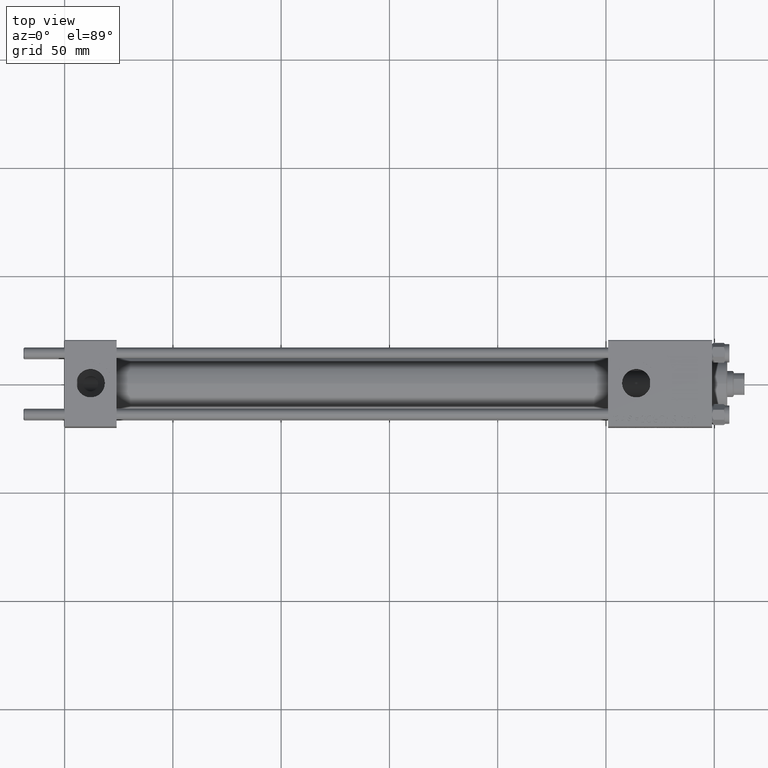
[diagram: clean part render]
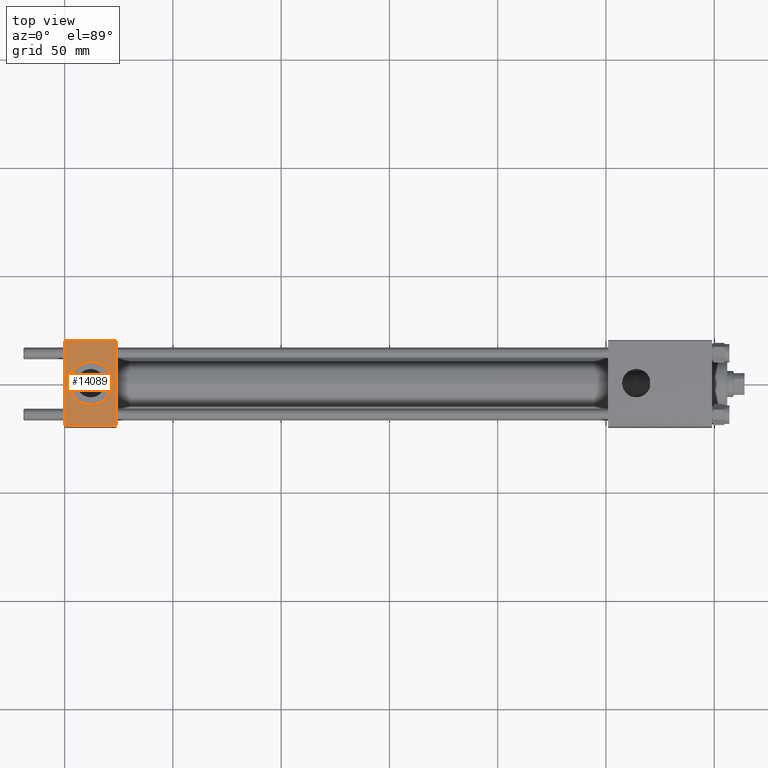
[diagram: same view with one face highlighted and labeled with its STEP entity id]
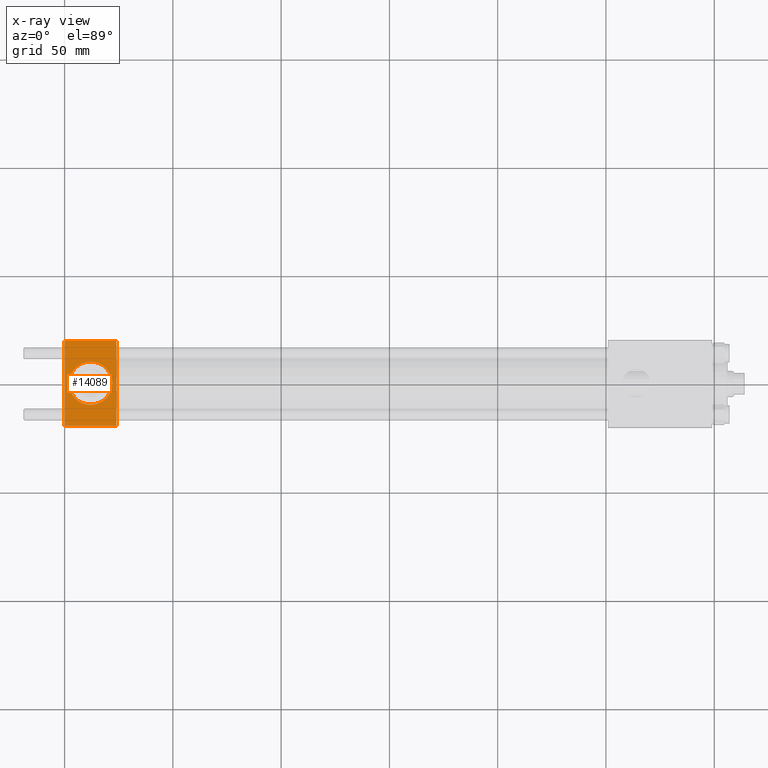
[diagram: x-ray of the same camera — body ghosted, the highlighted face saturated]
A machine part, top view. The second image highlights one B-rep face of the part: STEP entity #14089.
The next image is the same camera in x-ray: the body ghosted, the highlighted face saturated — about 0% of this face is hidden behind the body in this view.
In plain terms, the highlighted planar face has unit normal (0, 0, -1).
Its self-contained STEP definition (entity closure, byte-faithful):
#2878 = ORIENTED_EDGE ( 'NONE', *, *, #43893, .F. ) ;
#3404 = ORIENTED_EDGE ( 'NONE', *, *, #36253, .F. ) ;
#4213 = ORIENTED_EDGE ( 'NONE', *, *, #48633, .T. ) ;
#4687 = DIRECTION ( 'NONE',  ( 0.000000000000000000, -1.000000000000000000, -2.602085213965210149E-16 ) ) ;
#4936 = CARTESIAN_POINT ( 'NONE',  ( 24.00000000000000000, 20.00000000000000000, 20.00000000000000000 ) ) ;
#5220 = CARTESIAN_POINT ( 'NONE',  ( 2.000000000000003553, 1.224646799147354440E-15, 19.99999999999999645 ) ) ;
#9597 = DIRECTION ( 'NONE',  ( -1.000000000000000000, 0.000000000000000000, 0.000000000000000000 ) ) ;
#10247 = EDGE_CURVE ( 'NONE', #16163, #31042, #13013, .T. ) ;
#10495 = EDGE_LOOP ( 'NONE', ( #3404, #2878 ) ) ;
#12122 = CARTESIAN_POINT ( 'NONE',  ( 24.00000000000000000, 19.50000000000000000, 20.00000000000000000 ) ) ;
#12256 = DIRECTION ( 'NONE',  ( 0.000000000000000000, -1.000000000000000000, -2.602085213965210149E-16 ) ) ;
#12567 = FACE_BOUND ( 'NONE', #10495, .T. ) ;
#13013 = LINE ( 'NONE', #4936, #28827 ) ;
#13387 = LINE ( 'NONE', #28804, #36706 ) ;
#14089 = ADVANCED_FACE ( 'NONE', ( #12567, #27970 ), #24184, .F. ) ;
#15466 = CIRCLE ( 'NONE', #34833, 9.999999999999998224 ) ;
#16038 = CARTESIAN_POINT ( 'NONE',  ( 0.000000000000000000, 20.00000000000000000, 20.00000000000000000 ) ) ;
#16104 = CARTESIAN_POINT ( 'NONE',  ( 24.00000000000000000, 20.00000000000000000, 20.00000000000000000 ) ) ;
#16163 = VERTEX_POINT ( 'NONE', #12122 ) ;
#16529 = LINE ( 'NONE', #16038, #47839 ) ;
#16632 = ORIENTED_EDGE ( 'NONE', *, *, #19495, .T. ) ;
#19495 = EDGE_CURVE ( 'NONE', #32228, #31042, #26422, .T. ) ;
#20462 = AXIS2_PLACEMENT_3D ( 'NONE', #34810, #34555, #30772 ) ;
#22647 = DIRECTION ( 'NONE',  ( 1.000000000000000000, 0.000000000000000000, 0.000000000000000000 ) ) ;
#24184 = PLANE ( 'NONE',  #36961 ) ;
#24749 = CARTESIAN_POINT ( 'NONE',  ( 22.00000000000000000, 1.540743955509788682E-30, 19.99999999999999645 ) ) ;
#24962 = VECTOR ( 'NONE', #22647, 1000.000000000000000 ) ;
#26422 = LINE ( 'NONE', #30224, #24962 ) ;
#27673 = CARTESIAN_POINT ( 'NONE',  ( 24.00000000000000000, -19.49999999999999289, 19.99999999999998934 ) ) ;
#27970 = FACE_OUTER_BOUND ( 'NONE', #49192, .T. ) ;
#28089 = DIRECTION ( 'NONE',  ( 1.000000000000000000, 0.000000000000000000, 0.000000000000000000 ) ) ;
#28355 = CARTESIAN_POINT ( 'NONE',  ( 0.000000000000000000, 19.50000000000000000, 20.00000000000000000 ) ) ;
#28804 = CARTESIAN_POINT ( 'NONE',  ( 0.000000000000000000, 19.50000000000000000, 20.00000000000000000 ) ) ;
#28827 = VECTOR ( 'NONE', #4687, 1000.000000000000000 ) ;
#30224 = CARTESIAN_POINT ( 'NONE',  ( 24.00000000000000000, -19.49999999999999289, 19.99999999999998934 ) ) ;
#30772 = DIRECTION ( 'NONE',  ( 1.000000000000000000, 0.000000000000000000, 0.000000000000000000 ) ) ;
#31042 = VERTEX_POINT ( 'NONE', #27673 ) ;
#31312 = ORIENTED_EDGE ( 'NONE', *, *, #10247, .F. ) ;
#32228 = VERTEX_POINT ( 'NONE', #42525 ) ;
#32531 = CIRCLE ( 'NONE', #20462, 9.999999999999998224 ) ;
#32607 = DIRECTION ( 'NONE',  ( 0.000000000000000000, 0.000000000000000000, 1.000000000000000000 ) ) ;
#34555 = DIRECTION ( 'NONE',  ( 0.000000000000000000, 0.000000000000000000, 1.000000000000000000 ) ) ;
#34810 = CARTESIAN_POINT ( 'NONE',  ( 12.00000000000000000, 1.540743955509788682E-30, 19.99999999999999645 ) ) ;
#34833 = AXIS2_PLACEMENT_3D ( 'NONE', #43972, #32607, #28089 ) ;
#35933 = VERTEX_POINT ( 'NONE', #5220 ) ;
#36253 = EDGE_CURVE ( 'NONE', #44522, #35933, #15466, .T. ) ;
#36706 = VECTOR ( 'NONE', #9597, 1000.000000000000000 ) ;
#36961 = AXIS2_PLACEMENT_3D ( 'NONE', #16104, #47407, #42882 ) ;
#38643 = ORIENTED_EDGE ( 'NONE', *, *, #39758, .T. ) ;
#39758 = EDGE_CURVE ( 'NONE', #44293, #32228, #16529, .T. ) ;
#42525 = CARTESIAN_POINT ( 'NONE',  ( 0.000000000000000000, -19.49999999999999289, 19.99999999999998934 ) ) ;
#42882 = DIRECTION ( 'NONE',  ( 0.000000000000000000, 1.000000000000000000, 2.602085213965210149E-16 ) ) ;
#43893 = EDGE_CURVE ( 'NONE', #35933, #44522, #32531, .T. ) ;
#43972 = CARTESIAN_POINT ( 'NONE',  ( 12.00000000000000000, 1.540743955509788682E-30, 19.99999999999999645 ) ) ;
#44293 = VERTEX_POINT ( 'NONE', #28355 ) ;
#44522 = VERTEX_POINT ( 'NONE', #24749 ) ;
#47407 = DIRECTION ( 'NONE',  ( 0.000000000000000000, 2.602085213965210149E-16, -1.000000000000000000 ) ) ;
#47839 = VECTOR ( 'NONE', #12256, 1000.000000000000000 ) ;
#48633 = EDGE_CURVE ( 'NONE', #16163, #44293, #13387, .T. ) ;
#49192 = EDGE_LOOP ( 'NONE', ( #38643, #16632, #31312, #4213 ) ) ;